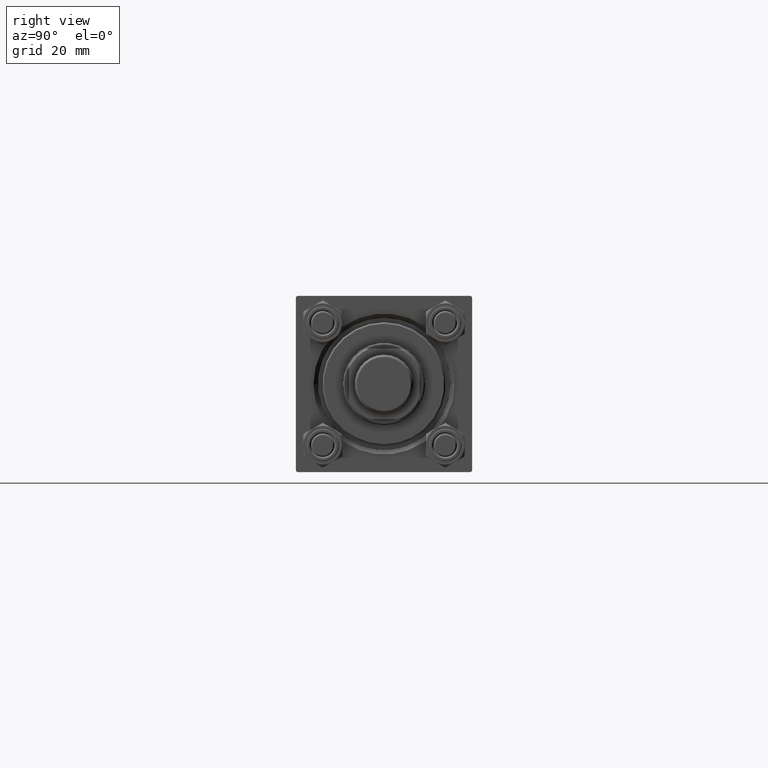
[diagram: clean part render]
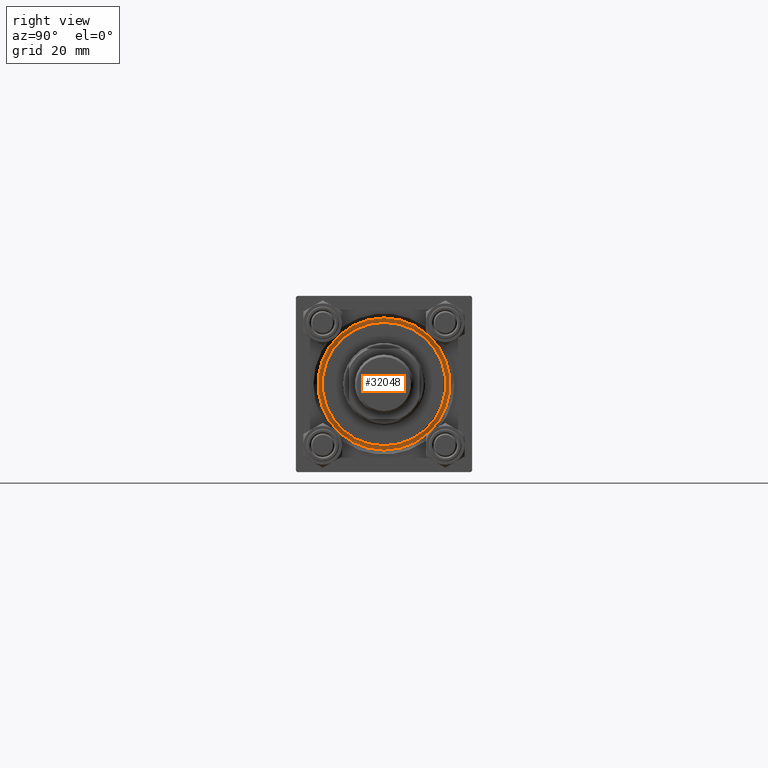
[diagram: same view with one face highlighted and labeled with its STEP entity id]
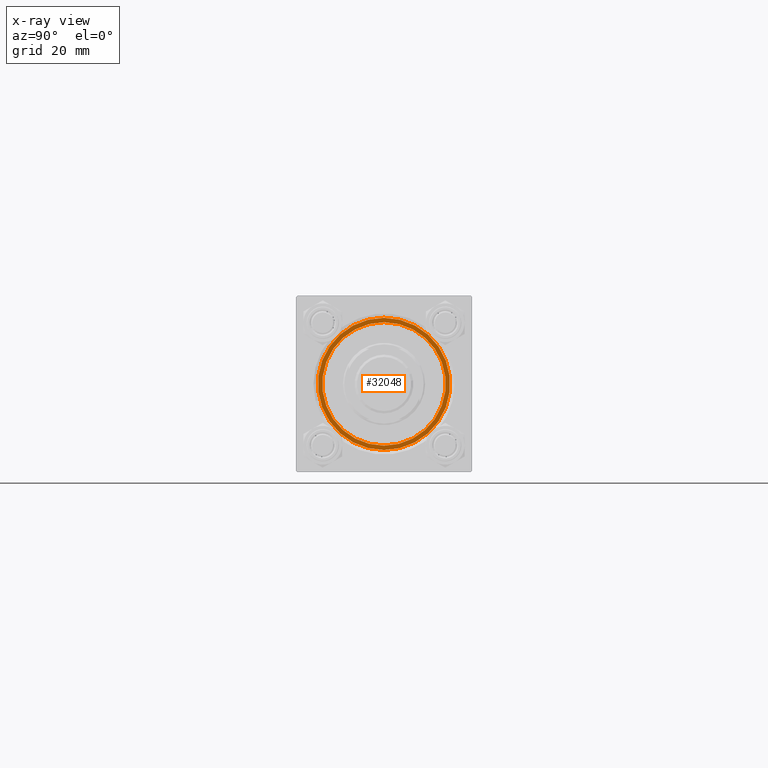
[diagram: x-ray of the same camera — body ghosted, the highlighted face saturated]
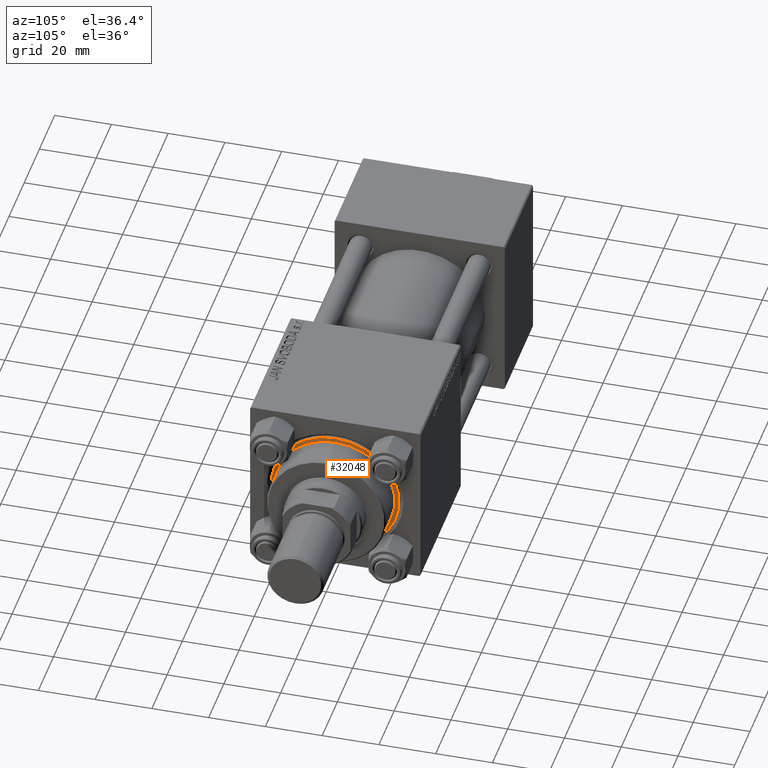
[diagram: same view with one face highlighted and labeled with its STEP entity id]
A machine part, right view. The second image highlights one B-rep face of the part: STEP entity #32048.
The next image is the same camera in x-ray: the body ghosted, the highlighted face saturated — about 0% of this face is hidden behind the body in this view.
A second angle (auxiliary view) of the same face is appended — the face is thin or edge-on in the first view.
In plain terms, the highlighted planar face has unit normal (1, 0, 0).
Its self-contained STEP definition (entity closure, byte-faithful):
#1061 = VERTEX_POINT ( 'NONE', #4977 ) ;
#1107 = DIRECTION ( 'NONE',  ( 0.000000000000000000, 0.000000000000000000, 1.000000000000000000 ) ) ;
#2355 = AXIS2_PLACEMENT_3D ( 'NONE', #34067, #29845, #16204 ) ;
#4291 = CARTESIAN_POINT ( 'NONE',  ( -21.00000000000000000, 0.000000000000000000, 28.69999999999999929 ) ) ;
#4977 = CARTESIAN_POINT ( 'NONE',  ( 21.00000000000000000, 2.571758278209441661E-15, 28.69999999999999929 ) ) ;
#5090 = DIRECTION ( 'NONE',  ( 0.000000000000000000, 0.000000000000000000, 1.000000000000000000 ) ) ;
#5360 = FACE_OUTER_BOUND ( 'NONE', #37334, .T. ) ;
#7112 = CIRCLE ( 'NONE', #21388, 22.50000000000000355 ) ;
#8160 = CARTESIAN_POINT ( 'NONE',  ( 0.000000000000000000, 0.000000000000000000, 28.69999999999999929 ) ) ;
#9622 = ORIENTED_EDGE ( 'NONE', *, *, #11770, .T. ) ;
#11770 = EDGE_CURVE ( 'NONE', #16409, #15626, #7112, .T. ) ;
#13067 = CARTESIAN_POINT ( 'NONE',  ( 0.000000000000000000, 0.000000000000000000, 28.69999999999999929 ) ) ;
#13446 = AXIS2_PLACEMENT_3D ( 'NONE', #25846, #1107, #21843 ) ;
#13932 = DIRECTION ( 'NONE',  ( 1.000000000000000000, 0.000000000000000000, 0.000000000000000000 ) ) ;
#15084 = CARTESIAN_POINT ( 'NONE',  ( 22.50000000000000355, 2.755455298081545172E-15, 28.69999999999999929 ) ) ;
#15626 = VERTEX_POINT ( 'NONE', #25370 ) ;
#16134 = EDGE_CURVE ( 'NONE', #15626, #16409, #41055, .T. ) ;
#16140 = DIRECTION ( 'NONE',  ( 0.000000000000000000, 0.000000000000000000, 1.000000000000000000 ) ) ;
#16204 = DIRECTION ( 'NONE',  ( 1.000000000000000000, 0.000000000000000000, -0.000000000000000000 ) ) ;
#16409 = VERTEX_POINT ( 'NONE', #15084 ) ;
#16876 = EDGE_LOOP ( 'NONE', ( #24389, #38838 ) ) ;
#17200 = EDGE_CURVE ( 'NONE', #1061, #28770, #37327, .T. ) ;
#19350 = ORIENTED_EDGE ( 'NONE', *, *, #16134, .T. ) ;
#21388 = AXIS2_PLACEMENT_3D ( 'NONE', #8160, #5090, #29808 ) ;
#21843 = DIRECTION ( 'NONE',  ( 1.000000000000000000, 0.000000000000000000, 0.000000000000000000 ) ) ;
#24389 = ORIENTED_EDGE ( 'NONE', *, *, #41228, .F. ) ;
#25370 = CARTESIAN_POINT ( 'NONE',  ( -22.50000000000000355, 0.000000000000000000, 28.69999999999999929 ) ) ;
#25846 = CARTESIAN_POINT ( 'NONE',  ( 0.000000000000000000, 0.000000000000000000, 28.69999999999999929 ) ) ;
#26552 = PLANE ( 'NONE',  #2355 ) ;
#28770 = VERTEX_POINT ( 'NONE', #4291 ) ;
#29808 = DIRECTION ( 'NONE',  ( 1.000000000000000000, 0.000000000000000000, 0.000000000000000000 ) ) ;
#29845 = DIRECTION ( 'NONE',  ( 0.000000000000000000, 0.000000000000000000, 1.000000000000000000 ) ) ;
#32048 = ADVANCED_FACE ( 'NONE', ( #37354, #5360 ), #26552, .T. ) ;
#34067 = CARTESIAN_POINT ( 'NONE',  ( 0.000000000000000000, 0.000000000000000000, 28.69999999999999929 ) ) ;
#34221 = CARTESIAN_POINT ( 'NONE',  ( 0.000000000000000000, 0.000000000000000000, 28.69999999999999929 ) ) ;
#36690 = CIRCLE ( 'NONE', #13446, 21.00000000000000000 ) ;
#37327 = CIRCLE ( 'NONE', #42577, 21.00000000000000000 ) ;
#37334 = EDGE_LOOP ( 'NONE', ( #19350, #9622 ) ) ;
#37354 = FACE_BOUND ( 'NONE', #16876, .T. ) ;
#38213 = DIRECTION ( 'NONE',  ( 1.000000000000000000, 0.000000000000000000, 0.000000000000000000 ) ) ;
#38838 = ORIENTED_EDGE ( 'NONE', *, *, #17200, .F. ) ;
#38856 = DIRECTION ( 'NONE',  ( 0.000000000000000000, 0.000000000000000000, 1.000000000000000000 ) ) ;
#41055 = CIRCLE ( 'NONE', #41793, 22.50000000000000355 ) ;
#41228 = EDGE_CURVE ( 'NONE', #28770, #1061, #36690, .T. ) ;
#41793 = AXIS2_PLACEMENT_3D ( 'NONE', #34221, #38856, #13932 ) ;
#42577 = AXIS2_PLACEMENT_3D ( 'NONE', #13067, #16140, #38213 ) ;